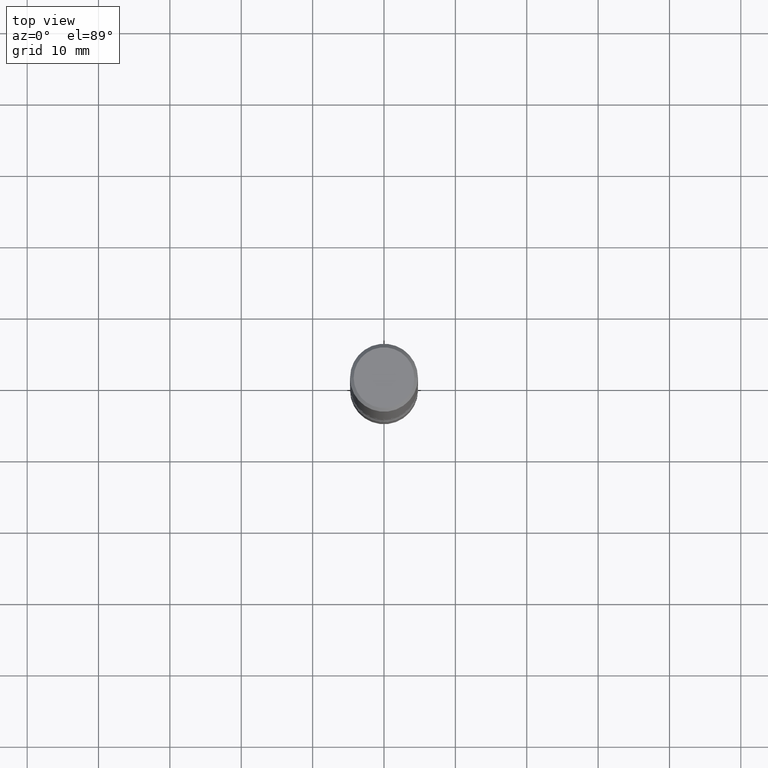
[diagram: clean part render]
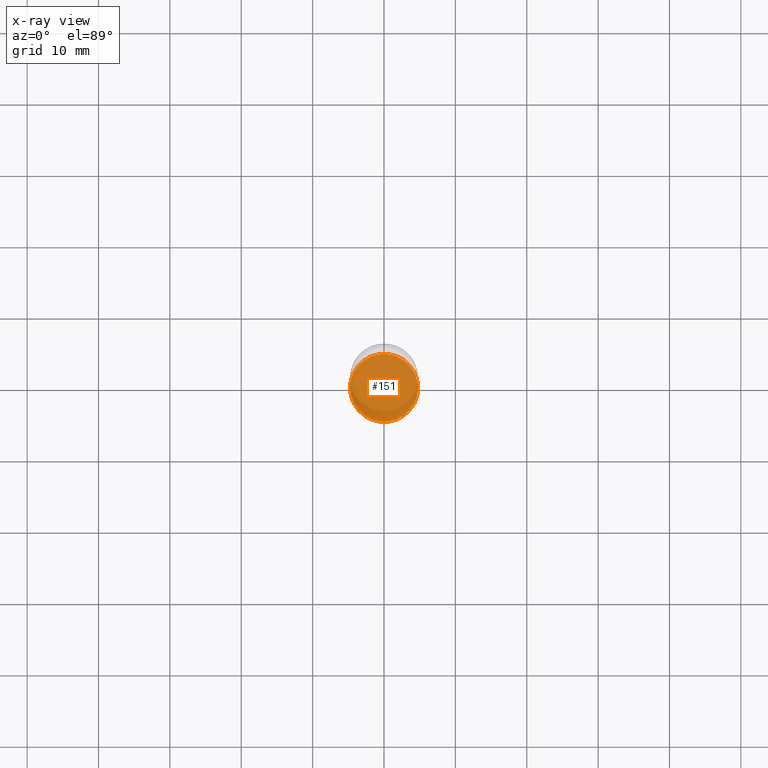
[diagram: x-ray — body ghosted, one internal face saturated and labeled with its STEP entity id]
A machine part, top view, then the same camera in x-ray: the body is ghosted and one INTERNAL B-rep face — a face not visible from any outside direction — is saturated and labeled: STEP entity #151.
In plain terms, the highlighted planar face has unit normal (0, -0, -1).
Its self-contained STEP definition (entity closure, byte-faithful):
#9 = AXIS2_PLACEMENT_3D ( 'NONE', #295, #246, #214 ) ;
#24 = DIRECTION ( 'NONE',  ( -1.000000000000000000, 6.982962677686265922E-15, -4.876176775795935793E-29 ) ) ;
#31 = CIRCLE ( 'NONE', #9, 0.1875000000000000833 ) ;
#82 = EDGE_LOOP ( 'NONE', ( #317, #310 ) ) ;
#114 = CARTESIAN_POINT ( 'NONE',  ( 7.947773620101696182E-29, -1.134731435124022600E-14, -3.250000000000000444 ) ) ;
#151 = ADVANCED_FACE ( 'NONE', ( #244 ), #294, .F. ) ;
#214 = DIRECTION ( 'NONE',  ( 1.000000000000000000, -6.982962677686269866E-15, 0.000000000000000000 ) ) ;
#244 = FACE_OUTER_BOUND ( 'NONE', #82, .T. ) ;
#246 = DIRECTION ( 'NONE',  ( -2.445468806185136597E-29, 3.491481338843145583E-15, 1.000000000000000000 ) ) ;
#265 = CIRCLE ( 'NONE', #469, 0.1875000000000000833 ) ;
#283 = AXIS2_PLACEMENT_3D ( 'NONE', #114, #411, #24 ) ;
#294 = PLANE ( 'NONE',  #283 ) ;
#295 = CARTESIAN_POINT ( 'NONE',  ( 7.947773620101696182E-29, -1.134731435124022600E-14, -3.250000000000000444 ) ) ;
#310 = ORIENTED_EDGE ( 'NONE', *, *, #490, .T. ) ;
#317 = ORIENTED_EDGE ( 'NONE', *, *, #521, .T. ) ;
#336 = VERTEX_POINT ( 'NONE', #441 ) ;
#338 = CARTESIAN_POINT ( 'NONE',  ( 7.947773620101696182E-29, -1.134731435124022600E-14, -3.250000000000000444 ) ) ;
#373 = CARTESIAN_POINT ( 'NONE',  ( 0.1875000000000000833, -1.265661985330640259E-14, -3.250000000000000444 ) ) ;
#411 = DIRECTION ( 'NONE',  ( 2.438088387897960049E-29, -3.491481338843145188E-15, -1.000000000000000000 ) ) ;
#441 = CARTESIAN_POINT ( 'NONE',  ( -0.1875000000000000833, -1.127198000367356963E-14, -3.250000000000000444 ) ) ;
#453 = VERTEX_POINT ( 'NONE', #373 ) ;
#469 = AXIS2_PLACEMENT_3D ( 'NONE', #338, #511, #554 ) ;
#490 = EDGE_CURVE ( 'NONE', #336, #453, #265, .T. ) ;
#511 = DIRECTION ( 'NONE',  ( -2.445468806185136597E-29, 3.491481338843145583E-15, 1.000000000000000000 ) ) ;
#521 = EDGE_CURVE ( 'NONE', #453, #336, #31, .T. ) ;
#554 = DIRECTION ( 'NONE',  ( 1.000000000000000000, -6.982962677686269866E-15, 0.000000000000000000 ) ) ;